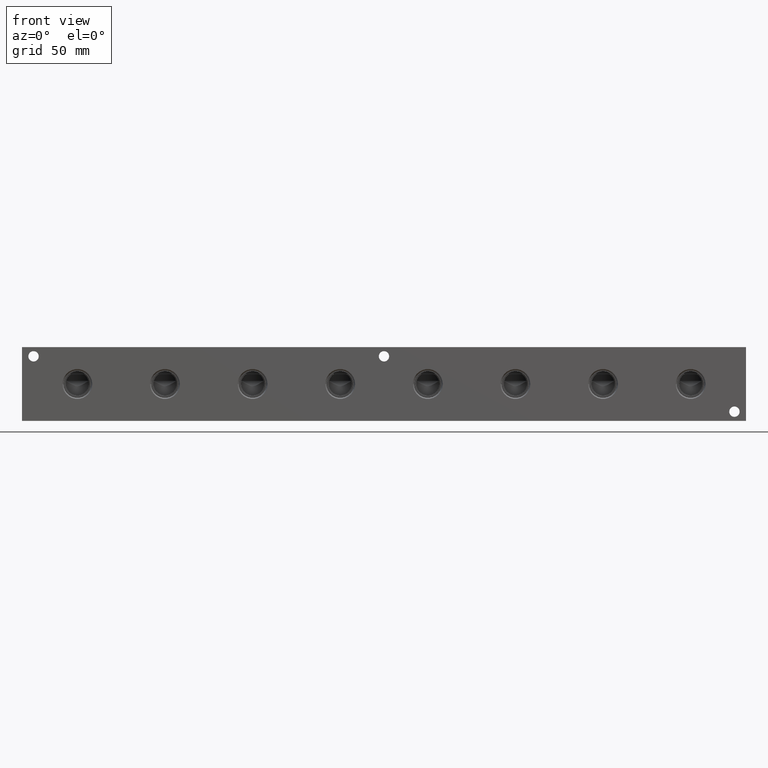
[diagram: clean part render]
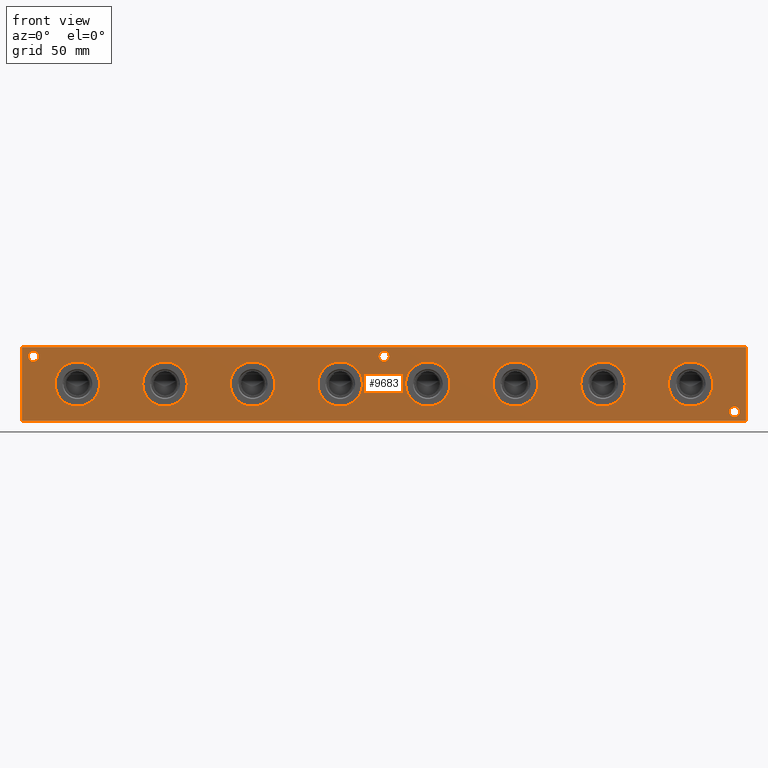
[diagram: same view with one face highlighted and labeled with its STEP entity id]
A machine part, front view. The second image highlights one B-rep face of the part: STEP entity #9683.
In plain terms, the highlighted planar face has unit normal (0, -1, 0).
Its self-contained STEP definition (entity closure, byte-faithful):
#228=CIRCLE('',#9912,15.3162);
#229=CIRCLE('',#9913,15.3162);
#239=CIRCLE('',#9928,15.3162);
#240=CIRCLE('',#9929,15.3162);
#250=CIRCLE('',#9944,15.3162);
#251=CIRCLE('',#9945,15.3162);
#261=CIRCLE('',#9960,15.3162);
#262=CIRCLE('',#9961,15.3162);
#272=CIRCLE('',#9976,15.3162);
#273=CIRCLE('',#9977,15.3162);
#283=CIRCLE('',#9992,15.3162);
#284=CIRCLE('',#9993,15.3162);
#294=CIRCLE('',#10008,15.3162);
#295=CIRCLE('',#10009,15.3162);
#394=CIRCLE('',#10201,15.3162);
#395=CIRCLE('',#10202,15.3162);
#500=CIRCLE('',#10384,3.5687);
#501=CIRCLE('',#10385,3.5687);
#503=CIRCLE('',#10393,3.5687);
#504=CIRCLE('',#10394,3.5687);
#506=CIRCLE('',#10402,3.5687);
#507=CIRCLE('',#10403,3.5687);
#589=FACE_BOUND('',#1939,.T.);
#590=FACE_BOUND('',#1940,.T.);
#591=FACE_BOUND('',#1941,.T.);
#592=FACE_BOUND('',#1942,.T.);
#593=FACE_BOUND('',#1943,.T.);
#594=FACE_BOUND('',#1944,.T.);
#595=FACE_BOUND('',#1945,.T.);
#596=FACE_BOUND('',#1946,.T.);
#597=FACE_BOUND('',#1947,.T.);
#598=FACE_BOUND('',#1948,.T.);
#599=FACE_BOUND('',#1949,.T.);
#827=PLANE('',#10422);
#1344=FACE_OUTER_BOUND('',#1938,.T.);
#1938=EDGE_LOOP('',(#8687,#8688,#8689,#8690));
#1939=EDGE_LOOP('',(#8691,#8692));
#1940=EDGE_LOOP('',(#8693,#8694));
#1941=EDGE_LOOP('',(#8695,#8696));
#1942=EDGE_LOOP('',(#8697,#8698));
#1943=EDGE_LOOP('',(#8699,#8700));
#1944=EDGE_LOOP('',(#8701,#8702));
#1945=EDGE_LOOP('',(#8703,#8704));
#1946=EDGE_LOOP('',(#8705,#8706));
#1947=EDGE_LOOP('',(#8707,#8708));
#1948=EDGE_LOOP('',(#8709,#8710));
#1949=EDGE_LOOP('',(#8711,#8712));
#2186=LINE('',#15223,#2914);
#2676=LINE('',#17395,#3404);
#2681=LINE('',#17404,#3409);
#2682=LINE('',#17406,#3410);
#2914=VECTOR('',#10750,10.);
#3404=VECTOR('',#12588,10.);
#3409=VECTOR('',#12597,10.);
#3410=VECTOR('',#12600,10.);
#4031=VERTEX_POINT('',#15221);
#4032=VERTEX_POINT('',#15222);
#4319=VERTEX_POINT('',#16184);
#4320=VERTEX_POINT('',#16185);
#4330=VERTEX_POINT('',#16215);
#4331=VERTEX_POINT('',#16216);
#4341=VERTEX_POINT('',#16246);
#4342=VERTEX_POINT('',#16247);
#4352=VERTEX_POINT('',#16277);
#4353=VERTEX_POINT('',#16278);
#4363=VERTEX_POINT('',#16308);
#4364=VERTEX_POINT('',#16309);
#4374=VERTEX_POINT('',#16339);
#4375=VERTEX_POINT('',#16340);
#4385=VERTEX_POINT('',#16370);
#4386=VERTEX_POINT('',#16371);
#4499=VERTEX_POINT('',#17001);
#4500=VERTEX_POINT('',#17002);
#4597=VERTEX_POINT('',#17326);
#4598=VERTEX_POINT('',#17327);
#4602=VERTEX_POINT('',#17342);
#4603=VERTEX_POINT('',#17343);
#4607=VERTEX_POINT('',#17358);
#4608=VERTEX_POINT('',#17359);
#4616=VERTEX_POINT('',#17393);
#4618=VERTEX_POINT('',#17402);
#5102=EDGE_CURVE('',#4031,#4032,#2186,.T.);
#5521=EDGE_CURVE('',#4319,#4320,#228,.T.);
#5522=EDGE_CURVE('',#4320,#4319,#229,.T.);
#5536=EDGE_CURVE('',#4330,#4331,#239,.T.);
#5537=EDGE_CURVE('',#4331,#4330,#240,.T.);
#5551=EDGE_CURVE('',#4341,#4342,#250,.T.);
#5552=EDGE_CURVE('',#4342,#4341,#251,.T.);
#5566=EDGE_CURVE('',#4352,#4353,#261,.T.);
#5567=EDGE_CURVE('',#4353,#4352,#262,.T.);
#5581=EDGE_CURVE('',#4363,#4364,#272,.T.);
#5582=EDGE_CURVE('',#4364,#4363,#273,.T.);
#5596=EDGE_CURVE('',#4374,#4375,#283,.T.);
#5597=EDGE_CURVE('',#4375,#4374,#284,.T.);
#5611=EDGE_CURVE('',#4385,#4386,#294,.T.);
#5612=EDGE_CURVE('',#4386,#4385,#295,.T.);
#5793=EDGE_CURVE('',#4499,#4500,#394,.T.);
#5794=EDGE_CURVE('',#4500,#4499,#395,.T.);
#5943=EDGE_CURVE('',#4597,#4598,#500,.T.);
#5944=EDGE_CURVE('',#4598,#4597,#501,.T.);
#5952=EDGE_CURVE('',#4602,#4603,#503,.T.);
#5953=EDGE_CURVE('',#4603,#4602,#504,.T.);
#5961=EDGE_CURVE('',#4607,#4608,#506,.T.);
#5962=EDGE_CURVE('',#4608,#4607,#507,.T.);
#5980=EDGE_CURVE('',#4616,#4031,#2676,.T.);
#5985=EDGE_CURVE('',#4618,#4032,#2681,.T.);
#5986=EDGE_CURVE('',#4616,#4618,#2682,.T.);
#8687=ORIENTED_EDGE('',*,*,#5986,.T.);
#8688=ORIENTED_EDGE('',*,*,#5985,.T.);
#8689=ORIENTED_EDGE('',*,*,#5102,.F.);
#8690=ORIENTED_EDGE('',*,*,#5980,.F.);
#8691=ORIENTED_EDGE('',*,*,#5521,.T.);
#8692=ORIENTED_EDGE('',*,*,#5522,.T.);
#8693=ORIENTED_EDGE('',*,*,#5536,.T.);
#8694=ORIENTED_EDGE('',*,*,#5537,.T.);
#8695=ORIENTED_EDGE('',*,*,#5551,.T.);
#8696=ORIENTED_EDGE('',*,*,#5552,.T.);
#8697=ORIENTED_EDGE('',*,*,#5566,.T.);
#8698=ORIENTED_EDGE('',*,*,#5567,.T.);
#8699=ORIENTED_EDGE('',*,*,#5581,.T.);
#8700=ORIENTED_EDGE('',*,*,#5582,.T.);
#8701=ORIENTED_EDGE('',*,*,#5596,.T.);
#8702=ORIENTED_EDGE('',*,*,#5597,.T.);
#8703=ORIENTED_EDGE('',*,*,#5611,.T.);
#8704=ORIENTED_EDGE('',*,*,#5612,.T.);
#8705=ORIENTED_EDGE('',*,*,#5793,.T.);
#8706=ORIENTED_EDGE('',*,*,#5794,.T.);
#8707=ORIENTED_EDGE('',*,*,#5943,.T.);
#8708=ORIENTED_EDGE('',*,*,#5944,.T.);
#8709=ORIENTED_EDGE('',*,*,#5952,.T.);
#8710=ORIENTED_EDGE('',*,*,#5953,.T.);
#8711=ORIENTED_EDGE('',*,*,#5961,.T.);
#8712=ORIENTED_EDGE('',*,*,#5962,.T.);
#9683=ADVANCED_FACE('',(#1344,#589,#590,#591,#592,#593,#594,#595,#596,#597,
#598,#599),#827,.T.);
#9912=AXIS2_PLACEMENT_3D('',#16186,#11463,#11464);
#9913=AXIS2_PLACEMENT_3D('',#16187,#11465,#11466);
#9928=AXIS2_PLACEMENT_3D('',#16217,#11499,#11500);
#9929=AXIS2_PLACEMENT_3D('',#16218,#11501,#11502);
#9944=AXIS2_PLACEMENT_3D('',#16248,#11535,#11536);
#9945=AXIS2_PLACEMENT_3D('',#16249,#11537,#11538);
#9960=AXIS2_PLACEMENT_3D('',#16279,#11571,#11572);
#9961=AXIS2_PLACEMENT_3D('',#16280,#11573,#11574);
#9976=AXIS2_PLACEMENT_3D('',#16310,#11607,#11608);
#9977=AXIS2_PLACEMENT_3D('',#16311,#11609,#11610);
#9992=AXIS2_PLACEMENT_3D('',#16341,#11643,#11644);
#9993=AXIS2_PLACEMENT_3D('',#16342,#11645,#11646);
#10008=AXIS2_PLACEMENT_3D('',#16372,#11679,#11680);
#10009=AXIS2_PLACEMENT_3D('',#16373,#11681,#11682);
#10201=AXIS2_PLACEMENT_3D('',#17003,#12093,#12094);
#10202=AXIS2_PLACEMENT_3D('',#17004,#12095,#12096);
#10384=AXIS2_PLACEMENT_3D('',#17328,#12503,#12504);
#10385=AXIS2_PLACEMENT_3D('',#17329,#12505,#12506);
#10393=AXIS2_PLACEMENT_3D('',#17344,#12523,#12524);
#10394=AXIS2_PLACEMENT_3D('',#17345,#12525,#12526);
#10402=AXIS2_PLACEMENT_3D('',#17360,#12543,#12544);
#10403=AXIS2_PLACEMENT_3D('',#17361,#12545,#12546);
#10422=AXIS2_PLACEMENT_3D('',#17405,#12598,#12599);
#10750=DIRECTION('',(1.,0.,0.));
#11463=DIRECTION('center_axis',(0.,1.,0.));
#11464=DIRECTION('ref_axis',(1.,0.,0.));
#11465=DIRECTION('center_axis',(0.,1.,0.));
#11466=DIRECTION('ref_axis',(1.,0.,0.));
#11499=DIRECTION('center_axis',(0.,1.,0.));
#11500=DIRECTION('ref_axis',(1.,0.,0.));
#11501=DIRECTION('center_axis',(0.,1.,0.));
#11502=DIRECTION('ref_axis',(1.,0.,0.));
#11535=DIRECTION('center_axis',(0.,1.,0.));
#11536=DIRECTION('ref_axis',(1.,0.,0.));
#11537=DIRECTION('center_axis',(0.,1.,0.));
#11538=DIRECTION('ref_axis',(1.,0.,0.));
#11571=DIRECTION('center_axis',(0.,1.,0.));
#11572=DIRECTION('ref_axis',(1.,0.,0.));
#11573=DIRECTION('center_axis',(0.,1.,0.));
#11574=DIRECTION('ref_axis',(1.,0.,0.));
#11607=DIRECTION('center_axis',(0.,1.,0.));
#11608=DIRECTION('ref_axis',(1.,0.,0.));
#11609=DIRECTION('center_axis',(0.,1.,0.));
#11610=DIRECTION('ref_axis',(1.,0.,0.));
#11643=DIRECTION('center_axis',(0.,1.,0.));
#11644=DIRECTION('ref_axis',(1.,0.,0.));
#11645=DIRECTION('center_axis',(0.,1.,0.));
#11646=DIRECTION('ref_axis',(1.,0.,0.));
#11679=DIRECTION('center_axis',(0.,1.,0.));
#11680=DIRECTION('ref_axis',(1.,0.,0.));
#11681=DIRECTION('center_axis',(0.,1.,0.));
#11682=DIRECTION('ref_axis',(1.,0.,0.));
#12093=DIRECTION('center_axis',(0.,1.,0.));
#12094=DIRECTION('ref_axis',(1.,0.,0.));
#12095=DIRECTION('center_axis',(0.,1.,0.));
#12096=DIRECTION('ref_axis',(1.,0.,0.));
#12503=DIRECTION('center_axis',(0.,1.,0.));
#12504=DIRECTION('ref_axis',(1.,0.,0.));
#12505=DIRECTION('center_axis',(0.,1.,0.));
#12506=DIRECTION('ref_axis',(1.,0.,0.));
#12523=DIRECTION('center_axis',(0.,1.,0.));
#12524=DIRECTION('ref_axis',(1.,0.,0.));
#12525=DIRECTION('center_axis',(0.,1.,0.));
#12526=DIRECTION('ref_axis',(1.,0.,0.));
#12543=DIRECTION('center_axis',(0.,1.,0.));
#12544=DIRECTION('ref_axis',(1.,0.,0.));
#12545=DIRECTION('center_axis',(0.,1.,0.));
#12546=DIRECTION('ref_axis',(1.,0.,0.));
#12588=DIRECTION('',(0.,0.,1.));
#12597=DIRECTION('',(0.,0.,1.));
#12598=DIRECTION('center_axis',(0.,-1.,0.));
#12599=DIRECTION('ref_axis',(1.,0.,0.));
#12600=DIRECTION('',(1.,0.,0.));
#15221=CARTESIAN_POINT('',(0.,0.,50.8));
#15222=CARTESIAN_POINT('',(498.475,0.,50.8));
#15223=CARTESIAN_POINT('',(0.,0.,50.8));
#16184=CARTESIAN_POINT('',(475.6912,0.,25.4));
#16185=CARTESIAN_POINT('',(445.0588,0.,25.4));
#16186=CARTESIAN_POINT('Origin',(460.375,0.,25.4));
#16187=CARTESIAN_POINT('Origin',(460.375,0.,25.4));
#16215=CARTESIAN_POINT('',(415.3662,0.,25.4));
#16216=CARTESIAN_POINT('',(384.7338,0.,25.4));
#16217=CARTESIAN_POINT('Origin',(400.05,0.,25.4));
#16218=CARTESIAN_POINT('Origin',(400.05,0.,25.4));
#16246=CARTESIAN_POINT('',(355.0412,0.,25.4));
#16247=CARTESIAN_POINT('',(324.4088,0.,25.4));
#16248=CARTESIAN_POINT('Origin',(339.725,0.,25.4));
#16249=CARTESIAN_POINT('Origin',(339.725,0.,25.4));
#16277=CARTESIAN_POINT('',(294.7162,0.,25.4));
#16278=CARTESIAN_POINT('',(264.0838,0.,25.4));
#16279=CARTESIAN_POINT('Origin',(279.4,0.,25.4));
#16280=CARTESIAN_POINT('Origin',(279.4,0.,25.4));
#16308=CARTESIAN_POINT('',(234.3912,0.,25.4));
#16309=CARTESIAN_POINT('',(203.7588,0.,25.4));
#16310=CARTESIAN_POINT('Origin',(219.075,0.,25.4));
#16311=CARTESIAN_POINT('Origin',(219.075,0.,25.4));
#16339=CARTESIAN_POINT('',(174.0662,0.,25.4));
#16340=CARTESIAN_POINT('',(143.4338,0.,25.4));
#16341=CARTESIAN_POINT('Origin',(158.75,0.,25.4));
#16342=CARTESIAN_POINT('Origin',(158.75,0.,25.4));
#16370=CARTESIAN_POINT('',(113.7412,0.,25.4));
#16371=CARTESIAN_POINT('',(83.1088,0.,25.4));
#16372=CARTESIAN_POINT('Origin',(98.425,0.,25.4));
#16373=CARTESIAN_POINT('Origin',(98.425,0.,25.4));
#17001=CARTESIAN_POINT('',(53.4162,0.,25.4));
#17002=CARTESIAN_POINT('',(22.7838,0.,25.4));
#17003=CARTESIAN_POINT('Origin',(38.1,0.,25.4));
#17004=CARTESIAN_POINT('Origin',(38.1,0.,25.4));
#17326=CARTESIAN_POINT('',(252.7935,0.,44.45));
#17327=CARTESIAN_POINT('',(245.6561,0.,44.45));
#17328=CARTESIAN_POINT('Origin',(249.2248,0.,44.45));
#17329=CARTESIAN_POINT('Origin',(249.2248,0.,44.45));
#17342=CARTESIAN_POINT('',(11.4935,0.,44.45));
#17343=CARTESIAN_POINT('',(4.3561,0.,44.45));
#17344=CARTESIAN_POINT('Origin',(7.9248,0.,44.45));
#17345=CARTESIAN_POINT('Origin',(7.9248,0.,44.45));
#17358=CARTESIAN_POINT('',(494.0935,0.,6.35));
#17359=CARTESIAN_POINT('',(486.9561,0.,6.35));
#17360=CARTESIAN_POINT('Origin',(490.5248,0.,6.35));
#17361=CARTESIAN_POINT('Origin',(490.5248,0.,6.35));
#17393=CARTESIAN_POINT('',(0.,0.,0.));
#17395=CARTESIAN_POINT('',(0.,0.,0.));
#17402=CARTESIAN_POINT('',(498.475,0.,0.));
#17404=CARTESIAN_POINT('',(498.475,0.,0.));
#17405=CARTESIAN_POINT('Origin',(0.,0.,0.));
#17406=CARTESIAN_POINT('',(0.,0.,0.));